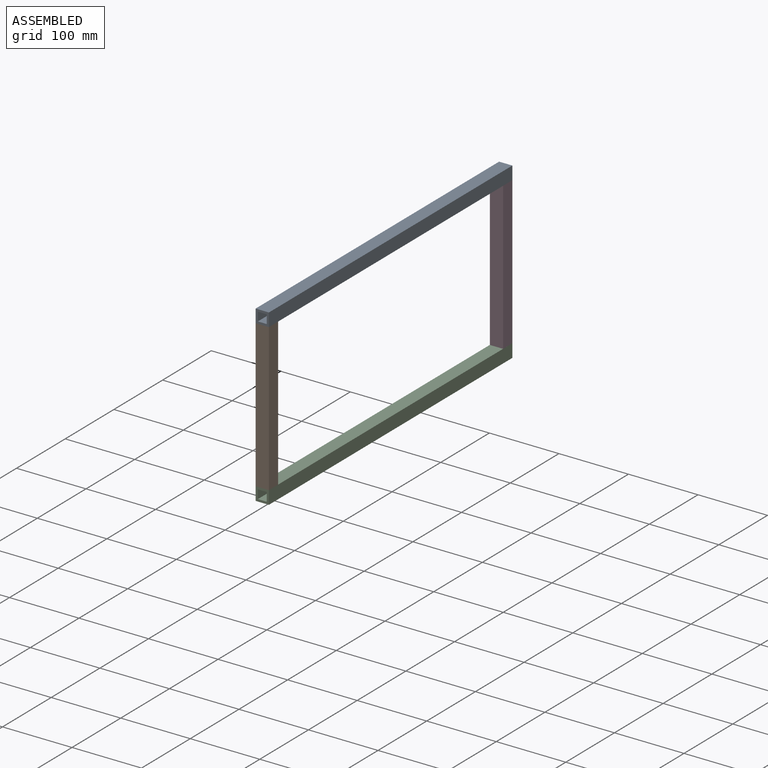
[diagram: assembled view]
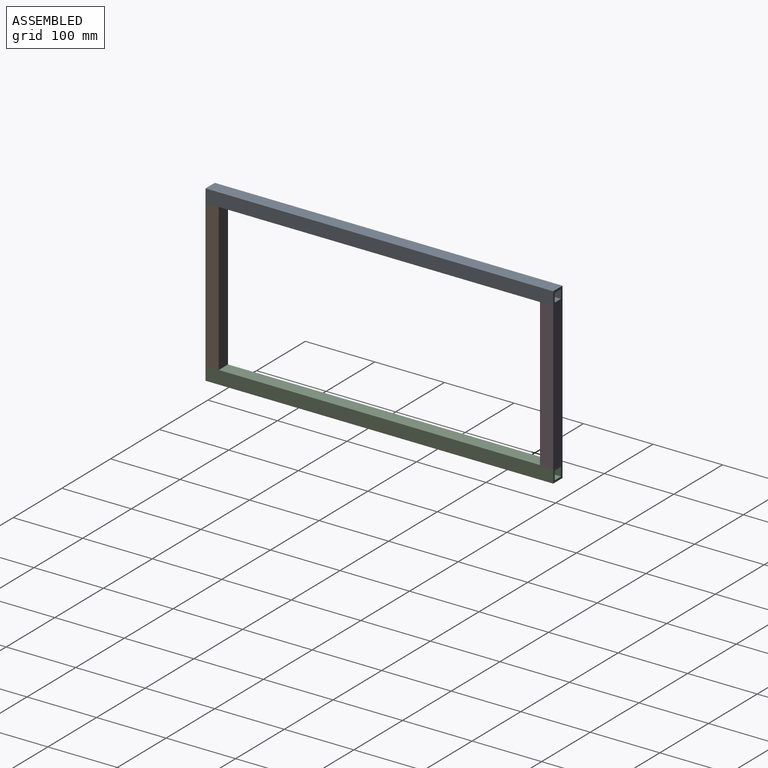
[diagram: assembled view, second angle]
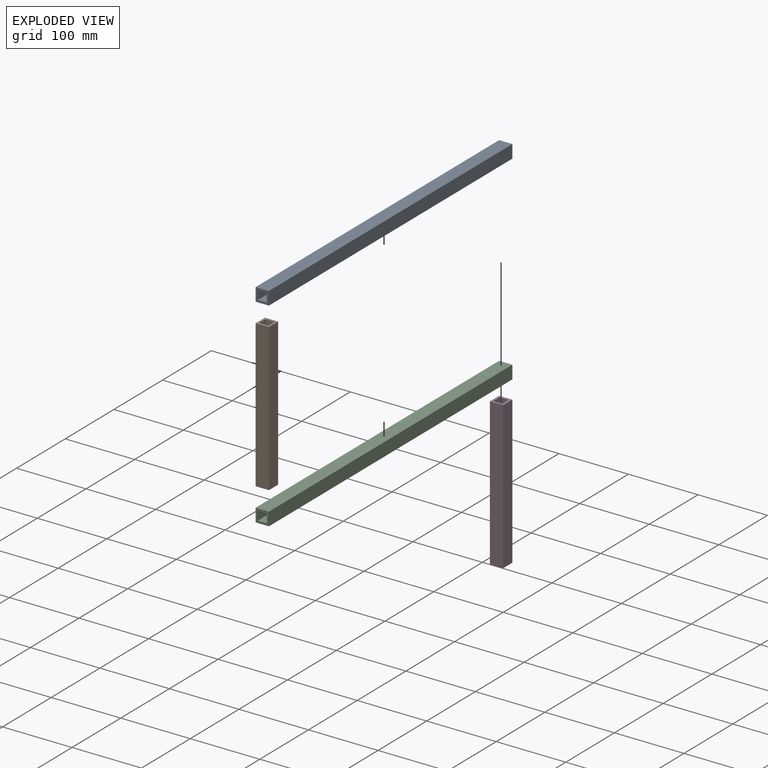
[diagram: exploded view]
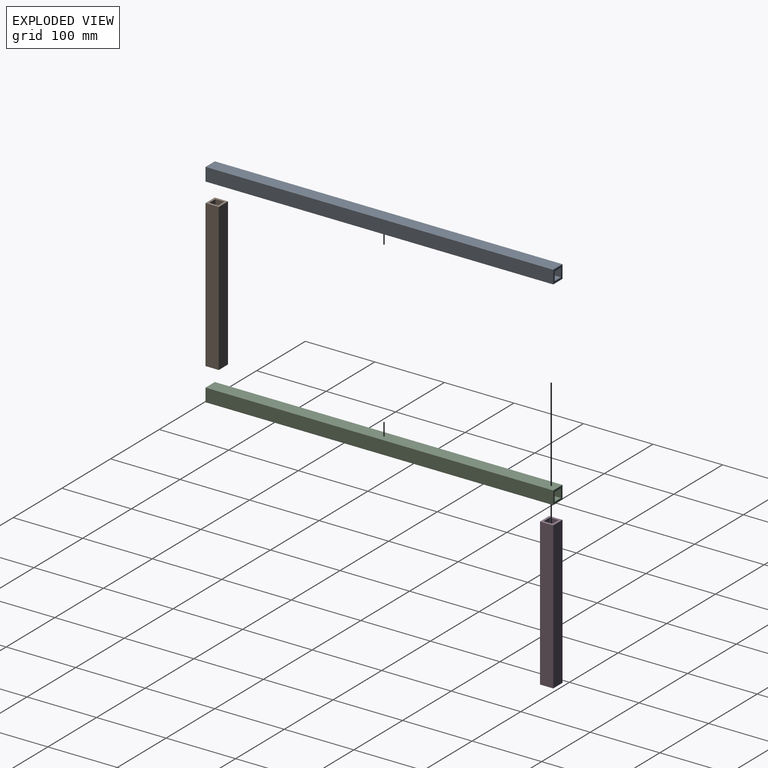
[diagram: exploded view, second angle]
ASSEMBLY  parts=4 mates=3
PART A: 10 faces, bbox 19.1x19.1x500 mm
  f0: plane 500x19.05mm, normal (0,1,0), area 9525mm2, adj f1,f7,f8,f9
  f1: plane 500x19.05mm, normal (-1,0,0), area 9525mm2, adj f0,f2,f8,f9
  f2: plane 500x19.05mm, normal (0,-1,0), area 9525mm2, adj f1,f7,f8,f9
  f3: plane 500x12.7mm, normal (1,0,0), area 6350mm2, adj f4,f6,f8,f9
  f4: plane 500x12.7mm, normal (0,-1,0), area 6350mm2, adj f3,f5,f8,f9
  f5: plane 500x12.7mm, normal (-1,0,0), area 6350mm2, adj f4,f6,f8,f9
  f6: plane 500x12.7mm, normal (0,1,0), area 6350mm2, adj f3,f5,f8,f9
  f7: plane 500x19.05mm, normal (1,0,0), area 9525mm2, adj f0,f2,f8,f9
  f8: plane 19.05x19.05mm, normal (0,0,1), area 201.6mm2, adj f0,f1,f2,f3,f4,f5,f6,f7
  f9: plane 19.05x19.05mm, normal (0,0,-1), area 201.6mm2, adj f0,f1,f2,f3,f4,f5,f6,f7
PART B: 10 faces, bbox 19.1x19.1x211.9 mm
  f0: plane 211.9x19.05mm, normal (0,1,0), area 4036.7mm2, adj f1,f7,f8,f9
  f1: plane 211.9x19.05mm, normal (-1,0,0), area 4036.7mm2, adj f0,f2,f8,f9
  f2: plane 211.9x19.05mm, normal (0,-1,0), area 4036.7mm2, adj f1,f7,f8,f9
  f3: plane 211.9x12.7mm, normal (1,0,0), area 2691.1mm2, adj f4,f6,f8,f9
  f4: plane 211.9x12.7mm, normal (0,-1,0), area 2691.1mm2, adj f3,f5,f8,f9
  f5: plane 211.9x12.7mm, normal (-1,0,0), area 2691.1mm2, adj f4,f6,f8,f9
  f6: plane 211.9x12.7mm, normal (0,1,0), area 2691.1mm2, adj f3,f5,f8,f9
  f7: plane 211.9x19.05mm, normal (1,0,0), area 4036.7mm2, adj f0,f2,f8,f9
  f8: plane 19.05x19.05mm, normal (0,0,1), area 201.6mm2, adj f0,f1,f2,f3,f4,f5,f6,f7
  f9: plane 19.05x19.05mm, normal (0,0,-1), area 201.6mm2, adj f0,f1,f2,f3,f4,f5,f6,f7
PART C: same geometry as A
PART D: same geometry as B
PLACE A rot(axis=(-1,0,0),90deg) t=(-169.65,154.63,277.68)mm
PLACE B rot(axis=(0.71,0.71,0),180deg) t=(-169.65,-85.85,162.2)mm
PLACE C rot(axis=(0,0.71,0.71),180deg) t=(-169.65,154.63,46.73)mm
PLACE D t=(-169.65,395.1,162.2)mm
MATE fastened B.f9 <-> A.f0  axis (0,0,1) through (-169.65,-95.37,268.15)mm
MATE fastened D.f9 <-> C.f0  axis (0,0,-1) through (-169.65,404.63,56.25)mm
MATE fastened B.f8 <-> C.f0  axis (0,0,-1) through (-169.65,-95.37,56.25)mm
